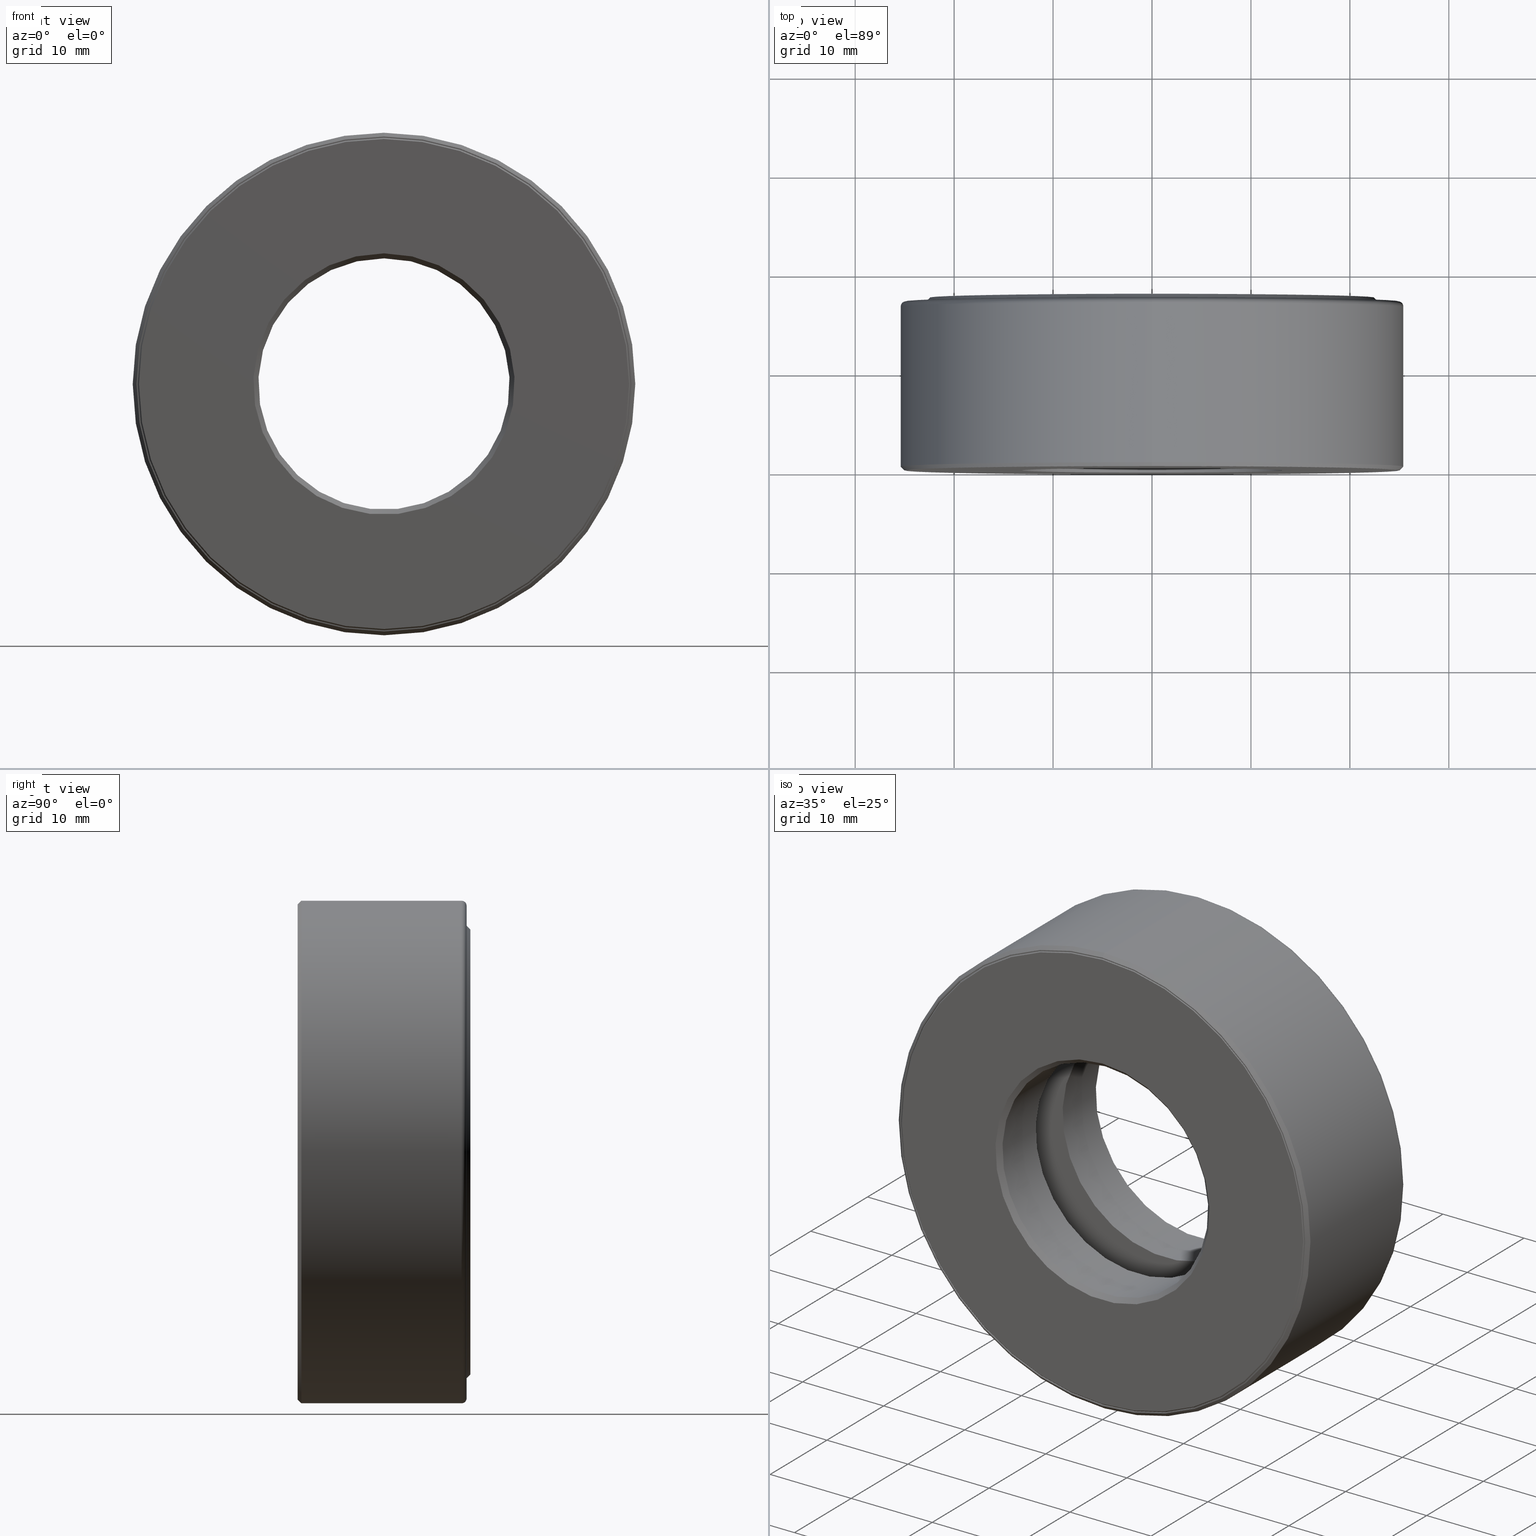
[diagram: canonical four-view strip — front | top / right | iso, engineering-drawing reading convention]
A machine part, canonical four-view strip (front | top / right | iso — engineering-drawing reading convention). The complete STEP part file that produces these views, byte-faithful:
ISO-10303-21;
HEADER;
FILE_DESCRIPTION (( 'STEP AP203' ),
    '1' );
FILE_NAME ('T-100-8.step',
    '2016-06-29T18:27:15',
    ( '' ),
    ( '' ),
    'SwSTEP 2.0',
    'SolidWorks 2016',
    '' );
FILE_SCHEMA (( 'CONFIG_CONTROL_DESIGN' ));
ENDSEC;

DATA;
#1 = CARTESIAN_POINT ( 'NONE',  ( 0.0000000000000000000, 0.3437499999999998300, 0.0000000000000000000 ) ) ;
#2 = FACE_BOUND ( 'NONE', #255, .T. ) ;
#3 = PERSON_AND_ORGANIZATION ( #600, #87 ) ;
#4 = FACE_BOUND ( 'NONE', #498, .T. ) ;
#5 = PERSON_AND_ORGANIZATION_ROLE ( 'design_owner' ) ;
#6 = EDGE_LOOP ( 'NONE', ( #476 ) ) ;
#7 = AXIS2_PLACEMENT_3D ( 'NONE', #485, #588, #363 ) ;
#8 = DIRECTION ( 'NONE',  ( -0.0000000000000000000, 1.000000000000000000, -0.0000000000000000000 ) ) ;
#9 = EDGE_LOOP ( 'NONE', ( #417 ) ) ;
#10 = AXIS2_PLACEMENT_3D ( 'NONE', #398, #477, #528 ) ;
#11 = CARTESIAN_POINT ( 'NONE',  ( 0.0000000000000000000, 0.01499999999999997700, 0.0000000000000000000 ) ) ;
#12 = FACE_OUTER_BOUND ( 'NONE', #505, .T. ) ;
#13 = VERTEX_POINT ( 'NONE', #530 ) ;
#14 = EDGE_LOOP ( 'NONE', ( #543 ) ) ;
#15 = DIRECTION ( 'NONE',  ( 0.0000000000000000000, 0.0000000000000000000, 1.000000000000000000 ) ) ;
#16 = FACE_BOUND ( 'NONE', #353, .T. ) ;
#17 = PLANE ( 'NONE',  #570 ) ;
#18 = EDGE_CURVE ( 'NONE', #202, #202, #578, .T. ) ;
#19 = DIRECTION ( 'NONE',  ( -0.0000000000000000000, 1.000000000000000000, -0.0000000000000000000 ) ) ;
#20 = EDGE_LOOP ( 'NONE', ( #481 ) ) ;
#21 = EDGE_LOOP ( 'NONE', ( #506 ) ) ;
#22 = EDGE_CURVE ( 'NONE', #65, #65, #296, .T. ) ;
#23 = CARTESIAN_POINT ( 'NONE',  ( 0.0000000000000000000, 0.6875000000000000000, 0.0000000000000000000 ) ) ;
#24 = DIRECTION ( 'NONE',  ( 0.0000000000000000000, 0.0000000000000000000, 1.000000000000000000 ) ) ;
#25 = CARTESIAN_POINT ( 'NONE',  ( 0.0000000000000000000, 0.2499999999999999700, 0.0000000000000000000 ) ) ;
#26 = FACE_OUTER_BOUND ( 'NONE', #378, .T. ) ;
#27 = COORDINATED_UNIVERSAL_TIME_OFFSET ( 5, 0, .BEHIND. ) ;
#28 = VERTEX_POINT ( 'NONE', #544 ) ;
#29 = DIRECTION ( 'NONE',  ( 0.0000000000000000000, -0.0000000000000000000, -1.000000000000000000 ) ) ;
#30 = DIRECTION ( 'NONE',  ( 6.982962677686269100E-015, -0.0000000000000000000, 1.000000000000000000 ) ) ;
#31 = EDGE_CURVE ( 'NONE', #80, #80, #523, .T. ) ;
#32 = EDGE_LOOP ( 'NONE', ( #370 ) ) ;
#33 = CARTESIAN_POINT ( 'NONE',  ( 0.0000000000000000000, -6.296055922898107200E-017, 0.9749999999999999800 ) ) ;
#34 = CARTESIAN_POINT ( 'NONE',  ( 0.0000000000000000000, 0.005000000000000000100, 0.9799999999999999800 ) ) ;
#35 = PRODUCT_DEFINITION_SHAPE ( 'NONE', 'NONE',  #471 ) ;
#36 = FACE_OUTER_BOUND ( 'NONE', #542, .T. ) ;
#37 = AXIS2_PLACEMENT_3D ( 'NONE', #47, #93, #424 ) ;
#38 = EDGE_LOOP ( 'NONE', ( #575 ) ) ;
#39 = CARTESIAN_POINT ( 'NONE',  ( 0.0000000000000000000, 0.2499999999999999700, 0.6897499999999997500 ) ) ;
#40 = ADVANCED_FACE ( 'NONE', ( #41, #453 ), #382, .T. ) ;
#41 = FACE_BOUND ( 'NONE', #203, .T. ) ;
#42 = FACE_BOUND ( 'NONE', #148, .T. ) ;
#43 = APPLICATION_PROTOCOL_DEFINITION ( 'international standard', 'config_control_design', 1994, #336 ) ;
#44 = EDGE_LOOP ( 'NONE', ( #118 ) ) ;
#45 = CIRCLE ( 'NONE', #451, 0.9999999999999998900 ) ;
#46 = PRODUCT_RELATED_PRODUCT_CATEGORY ( 'detail', '', ( #412 ) ) ;
#47 = CARTESIAN_POINT ( 'NONE',  ( 0.0000000000000000000, 0.6724999999999998800, 0.0000000000000000000 ) ) ;
#48 = ORIENTED_EDGE ( 'NONE', *, *, #389, .T. ) ;
#49 = AXIS2_PLACEMENT_3D ( 'NONE', #1, #180, #331 ) ;
#50 = FACE_BOUND ( 'NONE', #300, .T. ) ;
#51 = VERTEX_POINT ( 'NONE', #305 ) ;
#52 =( GEOMETRIC_REPRESENTATION_CONTEXT ( 3 ) GLOBAL_UNCERTAINTY_ASSIGNED_CONTEXT ( ( #108 ) ) GLOBAL_UNIT_ASSIGNED_CONTEXT ( ( #416, #320, #179 ) ) REPRESENTATION_CONTEXT ( 'NONE', 'WORKASPACE' ) );
#53 = DIRECTION ( 'NONE',  ( -0.0000000000000000000, 1.000000000000000000, -0.0000000000000000000 ) ) ;
#54 = ORIENTED_EDGE ( 'NONE', *, *, #358, .F. ) ;
#55 = DIRECTION ( 'NONE',  ( -0.0000000000000000000, 1.000000000000000000, 0.0000000000000000000 ) ) ;
#56 = EDGE_CURVE ( 'NONE', #488, #488, #316, .T. ) ;
#57 = AXIS2_PLACEMENT_3D ( 'NONE', #214, #404, #123 ) ;
#58 = TOROIDAL_SURFACE ( 'NONE', #576, 0.9799999999999999800, 0.02000000000000005900 ) ;
#59 = CARTESIAN_POINT ( 'NONE',  ( 0.0000000000000000000, 0.0000000000000000000, 0.0000000000000000000 ) ) ;
#60 = AXIS2_PLACEMENT_3D ( 'NONE', #514, #197, #295 ) ;
#61 = EDGE_LOOP ( 'NONE', ( #161 ) ) ;
#62 = FACE_OUTER_BOUND ( 'NONE', #490, .T. ) ;
#63 = PERSON_AND_ORGANIZATION ( #600, #87 ) ;
#64 = AXIS2_PLACEMENT_3D ( 'NONE', #400, #109, #355 ) ;
#65 = VERTEX_POINT ( 'NONE', #360 ) ;
#66 = EDGE_CURVE ( 'NONE', #429, #429, #516, .T. ) ;
#67 = PLANE ( 'NONE',  #371 ) ;
#68 = DIRECTION ( 'NONE',  ( -0.0000000000000000000, 1.000000000000000000, -0.0000000000000000000 ) ) ;
#69 = AXIS2_PLACEMENT_3D ( 'NONE', #59, #480, #256 ) ;
#70 = CARTESIAN_POINT ( 'NONE',  ( 0.0000000000000000000, 0.02000000000000033300, 0.0000000000000000000 ) ) ;
#71 = DIRECTION ( 'NONE',  ( 0.0000000000000000000, 0.0000000000000000000, 1.000000000000000000 ) ) ;
#72 = CARTESIAN_POINT ( 'NONE',  ( 0.0000000000000000000, -6.616194359655631800E-017, 0.9849999999999999900 ) ) ;
#73 = CIRCLE ( 'NONE', #473, 0.9799999999999999800 ) ;
#74 = VERTEX_POINT ( 'NONE', #539 ) ;
#75 = CC_DESIGN_SECURITY_CLASSIFICATION ( #280, ( #354 ) ) ;
#76 = CARTESIAN_POINT ( 'NONE',  ( 1.574681814529796800E-016, 0.4374999999999998900, 0.0000000000000000000 ) ) ;
#77 = ORIENTED_EDGE ( 'NONE', *, *, #85, .T. ) ;
#78 = APPROVAL_STATUS ( 'not_yet_approved' ) ;
#79 = FACE_OUTER_BOUND ( 'NONE', #6, .T. ) ;
#80 = VERTEX_POINT ( 'NONE', #583 ) ;
#81 = AXIS2_PLACEMENT_3D ( 'NONE', #462, #556, #141 ) ;
#82 = APPROVAL_ROLE ( '' ) ;
#83 = ADVANCED_FACE ( 'NONE', ( ), #144, .T. ) ;
#84 = CIRCLE ( 'NONE', #455, 0.5000000000000000000 ) ;
#85 = EDGE_CURVE ( 'NONE', #13, #13, #267, .T. ) ;
#86 = APPROVAL_DATE_TIME ( #428, #268 ) ;
#87 = ORGANIZATION ( 'UNSPECIFIED', 'UNSPECIFIED', '' ) ;
#88 = DIRECTION ( 'NONE',  ( 0.0000000000000000000, 0.0000000000000000000, 1.000000000000000000 ) ) ;
#89 = MANIFOLD_SOLID_BREP ( 'Revolve3', #519 ) ;
#90 = DIRECTION ( 'NONE',  ( -0.0000000000000000000, 1.000000000000000000, -0.0000000000000000000 ) ) ;
#91 = ORIENTED_EDGE ( 'NONE', *, *, #339, .T. ) ;
#92 = ADVANCED_FACE ( 'NONE', ( #540, #373 ), #478, .F. ) ;
#93 = DIRECTION ( 'NONE',  ( -0.0000000000000000000, 1.000000000000000000, -0.0000000000000000000 ) ) ;
#94 = AXIS2_PLACEMENT_3D ( 'NONE', #420, #422, #329 ) ;
#95 = CARTESIAN_POINT ( 'NONE',  ( 0.0000000000000000000, 0.4374999999999998900, 0.0000000000000000000 ) ) ;
#96 = CIRCLE ( 'NONE', #324, 0.9799999999999999800 ) ;
#97 = LOCAL_TIME ( 14, 27, 15.00000000000000000, #602 ) ;
#98 = VERTEX_POINT ( 'NONE', #443 ) ;
#99 = PERSON_AND_ORGANIZATION_ROLE ( 'classification_officer' ) ;
#100 = CC_DESIGN_PERSON_AND_ORGANIZATION_ASSIGNMENT ( #572, #5, ( #412 ) ) ;
#101 = DIRECTION ( 'NONE',  ( -0.0000000000000000000, 1.000000000000000000, -0.0000000000000000000 ) ) ;
#102 = ORIENTED_EDGE ( 'NONE', *, *, #183, .T. ) ;
#103 = DIRECTION ( 'NONE',  ( 0.0000000000000000000, 0.0000000000000000000, 1.000000000000000000 ) ) ;
#104 = AXIS2_PLACEMENT_3D ( 'NONE', #585, #352, #537 ) ;
#105 = CARTESIAN_POINT ( 'NONE',  ( 0.0000000000000000000, 0.6524999999999997500, 0.0000000000000000000 ) ) ;
#106 = CYLINDRICAL_SURFACE ( 'NONE', #442, 0.9200000000000000400 ) ;
#107 = VERTEX_POINT ( 'NONE', #209 ) ;
#108 = UNCERTAINTY_MEASURE_WITH_UNIT (LENGTH_MEASURE( 1.000000000000000100E-005 ), #416, 'distance_accuracy_value', 'NONE');
#109 = DIRECTION ( 'NONE',  ( 1.000000000000000000, 0.0000000000000000000, -1.047444401652940000E-014 ) ) ;
#110 = ORIENTED_EDGE ( 'NONE', *, *, #261, .F. ) ;
#111 = ORIENTED_EDGE ( 'NONE', *, *, #167, .T. ) ;
#112 = DIRECTION ( 'NONE',  ( -0.0000000000000000000, 1.000000000000000000, -0.0000000000000000000 ) ) ;
#113 = AXIS2_PLACEMENT_3D ( 'NONE', #311, #215, #211 ) ;
#114 = CARTESIAN_POINT ( 'NONE',  ( 0.0000000000000000000, 0.6524999999999997500, 1.000000000000000000 ) ) ;
#115 = AXIS2_PLACEMENT_3D ( 'NONE', #391, #159, #24 ) ;
#116 = CLOSED_SHELL ( 'NONE', ( #40, #92, #545, #182, #147, #598, #226, #415 ) ) ;
#117 = PERSON_AND_ORGANIZATION ( #600, #87 ) ;
#118 = ORIENTED_EDGE ( 'NONE', *, *, #339, .F. ) ;
#119 = ORIENTED_EDGE ( 'NONE', *, *, #85, .F. ) ;
#120 = CARTESIAN_POINT ( 'NONE',  ( 0.0000000000000000000, -6.398792618417301800E-017, 0.0000000000000000000 ) ) ;
#121 = CC_DESIGN_APPROVAL ( #566, ( #471 ) ) ;
#122 = FACE_OUTER_BOUND ( 'NONE', #383, .T. ) ;
#123 = DIRECTION ( 'NONE',  ( 0.0000000000000000000, -0.0000000000000000000, -1.000000000000000000 ) ) ;
#124 = PLANE ( 'NONE',  #113 ) ;
#125 = ORIENTED_EDGE ( 'NONE', *, *, #156, .T. ) ;
#126 = ORIENTED_EDGE ( 'NONE', *, *, #569, .T. ) ;
#127 = EDGE_LOOP ( 'NONE', ( #606 ) ) ;
#128 = EDGE_CURVE ( 'NONE', #98, #98, #387, .T. ) ;
#129 = SPHERICAL_SURFACE ( 'NONE', #464, 0.1562500000000000000 ) ;
#130 = ORIENTED_EDGE ( 'NONE', *, *, #261, .T. ) ;
#131 = EDGE_LOOP ( 'NONE', ( #91 ) ) ;
#132 = CC_DESIGN_PERSON_AND_ORGANIZATION_ASSIGNMENT ( #63, #134, ( #471 ) ) ;
#133 = ADVANCED_FACE ( 'NONE', ( #241, #16 ), #365, .T. ) ;
#134 = PERSON_AND_ORGANIZATION_ROLE ( 'creator' ) ;
#135 = CIRCLE ( 'NONE', #146, 0.9200000000000000400 ) ;
#136 = SHAPE_DEFINITION_REPRESENTATION ( #35, #374 ) ;
#137 = CIRCLE ( 'NONE', #104, 0.9397499999999998600 ) ;
#138 = DIRECTION ( 'NONE',  ( 0.0000000000000000000, -0.0000000000000000000, -1.000000000000000000 ) ) ;
#139 = MANIFOLD_SOLID_BREP ( 'Revolve2[2]', #116 ) ;
#140 = EDGE_LOOP ( 'NONE', ( #269 ) ) ;
#141 = DIRECTION ( 'NONE',  ( 0.0000000000000000000, 0.0000000000000000000, 1.000000000000000000 ) ) ;
#142 = DIMENSIONAL_EXPONENTS ( 1.000000000000000000, 0.0000000000000000000, 0.0000000000000000000, 0.0000000000000000000, 0.0000000000000000000, 0.0000000000000000000, 0.0000000000000000000 ) ;
#143 = CARTESIAN_POINT ( 'NONE',  ( 0.0000000000000000000, 0.4374999999999998900, 0.0000000000000000000 ) ) ;
#144 = SPHERICAL_SURFACE ( 'NONE', #285, 0.1562500000000000000 ) ;
#145 = CARTESIAN_POINT ( 'NONE',  ( -0.8147499999999998600, 0.3437499999999998300, 0.0000000000000000000 ) ) ;
#146 = AXIS2_PLACEMENT_3D ( 'NONE', #437, #297, #299 ) ;
#147 = ADVANCED_FACE ( 'NONE', ( #509, #592 ), #380, .F. ) ;
#148 = EDGE_LOOP ( 'NONE', ( #351 ) ) ;
#149 = CARTESIAN_POINT ( 'NONE',  ( 0.0000000000000000000, 0.0000000000000000000, 0.0000000000000000000 ) ) ;
#150 = ORIENTED_EDGE ( 'NONE', *, *, #246, .F. ) ;
#151 = FACE_OUTER_BOUND ( 'NONE', #153, .T. ) ;
#152 = DIRECTION ( 'NONE',  ( -0.0000000000000000000, 1.000000000000000000, -0.0000000000000000000 ) ) ;
#153 = EDGE_LOOP ( 'NONE', ( #102 ) ) ;
#154 = EDGE_LOOP ( 'NONE', ( #450 ) ) ;
#155 = CARTESIAN_POINT ( 'NONE',  ( 0.0000000000000000000, 0.0000000000000000000, 0.0000000000000000000 ) ) ;
#156 = EDGE_CURVE ( 'NONE', #176, #176, #260, .T. ) ;
#157 = AXIS2_PLACEMENT_3D ( 'NONE', #120, #263, #259 ) ;
#158 = FACE_BOUND ( 'NONE', #131, .T. ) ;
#159 = DIRECTION ( 'NONE',  ( -0.0000000000000000000, 1.000000000000000000, -0.0000000000000000000 ) ) ;
#160 = AXIS2_PLACEMENT_3D ( 'NONE', #143, #90, #551 ) ;
#161 = ORIENTED_EDGE ( 'NONE', *, *, #22, .T. ) ;
#162 = CARTESIAN_POINT ( 'NONE',  ( 0.0000000000000000000, 0.01499999999999997700, 0.9999999999999998900 ) ) ;
#163 = DIRECTION ( 'NONE',  ( 0.0000000000000000000, 0.0000000000000000000, 1.000000000000000000 ) ) ;
#164 = CYLINDRICAL_SURFACE ( 'NONE', #115, 0.9799999999999999800 ) ;
#165 = DATE_AND_TIME ( #207, #501 ) ;
#166 = VERTEX_POINT ( 'NONE', #580 ) ;
#167 = EDGE_CURVE ( 'NONE', #564, #564, #185, .T. ) ;
#168 = PLANE ( 'NONE',  #557 ) ;
#169 = CC_DESIGN_PERSON_AND_ORGANIZATION_ASSIGNMENT ( #571, #99, ( #280 ) ) ;
#170 = FACE_OUTER_BOUND ( 'NONE', #390, .T. ) ;
#171 = ORIENTED_EDGE ( 'NONE', *, *, #56, .F. ) ;
#172 = CARTESIAN_POINT ( 'NONE',  ( 0.0000000000000000000, 0.4375000000000000000, 0.6897499999999997500 ) ) ;
#173 = FACE_OUTER_BOUND ( 'NONE', #20, .T. ) ;
#174 = AXIS2_PLACEMENT_3D ( 'NONE', #105, #55, #15 ) ;
#175 = CALENDAR_DATE ( 2016, 29, 6 ) ;
#176 = VERTEX_POINT ( 'NONE', #72 ) ;
#177 =( LENGTH_UNIT ( ) NAMED_UNIT ( * ) SI_UNIT ( $, .METRE. ) );
#178 = ADVANCED_FACE ( 'NONE', ( #348, #158 ), #342, .F. ) ;
#179 =( NAMED_UNIT ( * ) SI_UNIT ( $, .STERADIAN. ) SOLID_ANGLE_UNIT ( ) );
#180 = DIRECTION ( 'NONE',  ( -0.0000000000000000000, 1.000000000000000000, -0.0000000000000000000 ) ) ;
#181 = CC_DESIGN_APPROVAL ( #233, ( #354 ) ) ;
#182 = ADVANCED_FACE ( 'NONE', ( #170, #26 ), #290, .F. ) ;
#183 = EDGE_CURVE ( 'NONE', #74, #74, #493, .T. ) ;
#184 = DIRECTION ( 'NONE',  ( -0.0000000000000000000, 1.000000000000000000, -0.0000000000000000000 ) ) ;
#185 = CIRCLE ( 'NONE', #228, 0.9729999999999998600 ) ;
#186 = ADVANCED_FACE ( 'NONE', ( #2, #12 ), #565, .F. ) ;
#187 = ORIENTED_EDGE ( 'NONE', *, *, #403, .F. ) ;
#188 = CLOSED_SHELL ( 'NONE', ( #376, #456, #287, #178, #322, #508, #278, #229, #133, #550, #190, #333, #372, #504, #274, #186 ) ) ;
#189 = DIRECTION ( 'NONE',  ( 0.0000000000000000000, 0.0000000000000000000, 1.000000000000000000 ) ) ;
#190 = ADVANCED_FACE ( 'NONE', ( #394, #500 ), #421, .F. ) ;
#191 = CYLINDRICAL_SURFACE ( 'NONE', #423, 1.000000000000000000 ) ;
#192 = DATE_AND_TIME ( #175, #447 ) ;
#193 = CIRCLE ( 'NONE', #524, 0.6897499999999997500 ) ;
#194 = CARTESIAN_POINT ( 'NONE',  ( 0.0000000000000000000, 0.6724999999999998800, 0.0000000000000000000 ) ) ;
#195 = DIRECTION ( 'NONE',  ( 0.0000000000000000000, 0.0000000000000000000, 1.000000000000000000 ) ) ;
#196 = ORIENTED_EDGE ( 'NONE', *, *, #389, .F. ) ;
#197 = DIRECTION ( 'NONE',  ( -0.0000000000000000000, 1.000000000000000000, -0.0000000000000000000 ) ) ;
#198 = AXIS2_PLACEMENT_3D ( 'NONE', #559, #377, #88 ) ;
#199 = DIRECTION ( 'NONE',  ( 0.0000000000000000000, -1.000000000000000000, 0.0000000000000000000 ) ) ;
#200 = CIRCLE ( 'NONE', #419, 0.5000000000000001100 ) ;
#201 = CALENDAR_DATE ( 2016, 29, 6 ) ;
#202 = VERTEX_POINT ( 'NONE', #309 ) ;
#203 = EDGE_LOOP ( 'NONE', ( #362 ) ) ;
#204 = CARTESIAN_POINT ( 'NONE',  ( 0.0000000000000000000, -6.296055922898107200E-017, 0.0000000000000000000 ) ) ;
#205 = CARTESIAN_POINT ( 'NONE',  ( 0.0000000000000000000, 0.3437499999999998300, 0.0000000000000000000 ) ) ;
#206 = FACE_OUTER_BOUND ( 'NONE', #496, .T. ) ;
#207 = CALENDAR_DATE ( 2016, 29, 6 ) ;
#208 = CIRCLE ( 'NONE', #157, 0.9799999999999997600 ) ;
#209 = CARTESIAN_POINT ( 'NONE',  ( 0.0000000000000000000, 0.2499999999999998900, 0.9397499999999998600 ) ) ;
#210 = DIRECTION ( 'NONE',  ( -0.0000000000000000000, 1.000000000000000000, -0.0000000000000000000 ) ) ;
#211 = DIRECTION ( 'NONE',  ( 0.0000000000000000000, 0.0000000000000000000, 1.000000000000000000 ) ) ;
#212 = DIRECTION ( 'NONE',  ( 0.0000000000000000000, -1.000000000000000000, 0.0000000000000000000 ) ) ;
#213 = DIRECTION ( 'NONE',  ( 0.0000000000000000000, -1.000000000000000000, 0.0000000000000000000 ) ) ;
#214 = CARTESIAN_POINT ( 'NONE',  ( 0.0000000000000000000, 0.6724999999999998800, 0.0000000000000000000 ) ) ;
#215 = DIRECTION ( 'NONE',  ( -0.0000000000000000000, 1.000000000000000000, 0.0000000000000000000 ) ) ;
#216 = CONICAL_SURFACE ( 'NONE', #319, 0.9749999999999999800, 0.7853981633974367300 ) ;
#217 = APPROVAL_DATE_TIME ( #230, #233 ) ;
#218 = EDGE_LOOP ( 'NONE', ( #486 ) ) ;
#219 = EDGE_LOOP ( 'NONE', ( #470 ) ) ;
#220 = FACE_OUTER_BOUND ( 'NONE', #237, .T. ) ;
#221 = CC_DESIGN_PERSON_AND_ORGANIZATION_ASSIGNMENT ( #344, #457, ( #354 ) ) ;
#222 = EDGE_LOOP ( 'NONE', ( #111 ) ) ;
#223 = DATE_TIME_ROLE ( 'creation_date' ) ;
#224 = CARTESIAN_POINT ( 'NONE',  ( 0.0000000000000000000, 0.02000000000000033300, 0.5000000000000000000 ) ) ;
#225 = DIRECTION ( 'NONE',  ( -0.0000000000000000000, 1.000000000000000000, -0.0000000000000000000 ) ) ;
#226 = ADVANCED_FACE ( 'NONE', ( #306, #410 ), #283, .T. ) ;
#227 = FACE_OUTER_BOUND ( 'NONE', #218, .T. ) ;
#228 = AXIS2_PLACEMENT_3D ( 'NONE', #95, #53, #426 ) ;
#229 = ADVANCED_FACE ( 'NONE', ( #235, #62 ), #191, .T. ) ;
#230 = DATE_AND_TIME ( #459, #97 ) ;
#231 = ADVANCED_FACE ( 'NONE', ( ), #250, .T. ) ;
#232 = CLOSED_SHELL ( 'NONE', ( #231 ) ) ;
#233 = APPROVAL ( #418, 'UNSPECIFIED' ) ;
#234 = DIRECTION ( 'NONE',  ( 0.0000000000000000000, 0.0000000000000000000, 1.000000000000000000 ) ) ;
#235 = FACE_OUTER_BOUND ( 'NONE', #32, .T. ) ;
#236 = PERSON_AND_ORGANIZATION ( #600, #87 ) ;
#237 = EDGE_LOOP ( 'NONE', ( #527 ) ) ;
#238 = EDGE_LOOP ( 'NONE', ( #301 ) ) ;
#239 = AXIS2_PLACEMENT_3D ( 'NONE', #334, #225, #552 ) ;
#240 = DIRECTION ( 'NONE',  ( 0.0000000000000000000, -1.000000000000000000, 0.0000000000000000000 ) ) ;
#241 = FACE_OUTER_BOUND ( 'NONE', #595, .T. ) ;
#242 = VERTEX_POINT ( 'NONE', #276 ) ;
#243 = CC_DESIGN_PERSON_AND_ORGANIZATION_ASSIGNMENT ( #291, #368, ( #354 ) ) ;
#244 = DIRECTION ( 'NONE',  ( 0.0000000000000000000, 0.0000000000000000000, -1.000000000000000000 ) ) ;
#245 = DIRECTION ( 'NONE',  ( -0.0000000000000000000, 1.000000000000000000, -0.0000000000000000000 ) ) ;
#246 = EDGE_CURVE ( 'NONE', #555, #555, #96, .T. ) ;
#247 = CLOSED_SHELL ( 'NONE', ( #321 ) ) ;
#248 = ORIENTED_EDGE ( 'NONE', *, *, #18, .T. ) ;
#249 = CARTESIAN_POINT ( 'NONE',  ( -9.956752322577165600E-033, 2.667820306312757000E-018, 0.0000000000000000000 ) ) ;
#250 = SPHERICAL_SURFACE ( 'NONE', #264, 0.1562500000000000000 ) ;
#251 = CIRCLE ( 'NONE', #495, 0.6897499999999997500 ) ;
#252 = AXIS2_PLACEMENT_3D ( 'NONE', #467, #101, #573 ) ;
#253 = CARTESIAN_POINT ( 'NONE',  ( 0.0000000000000000000, 0.0000000000000000000, 0.0000000000000000000 ) ) ;
#254 = ORIENTED_EDGE ( 'NONE', *, *, #515, .F. ) ;
#255 = EDGE_LOOP ( 'NONE', ( #119 ) ) ;
#256 = DIRECTION ( 'NONE',  ( 0.0000000000000000000, 0.0000000000000000000, 1.000000000000000000 ) ) ;
#257 = CARTESIAN_POINT ( 'NONE',  ( 0.0000000000000000000, 0.6524999999999997500, 0.9200000000000000400 ) ) ;
#258 = DIRECTION ( 'NONE',  ( -0.0000000000000000000, 1.000000000000000000, -0.0000000000000000000 ) ) ;
#259 = DIRECTION ( 'NONE',  ( 0.0000000000000000000, 0.0000000000000000000, 1.000000000000000000 ) ) ;
#260 = CIRCLE ( 'NONE', #252, 0.9849999999999999900 ) ;
#261 = EDGE_CURVE ( 'NONE', #534, #534, #45, .T. ) ;
#262 = FACE_BOUND ( 'NONE', #154, .T. ) ;
#263 = DIRECTION ( 'NONE',  ( -0.0000000000000000000, 1.000000000000000000, -0.0000000000000000000 ) ) ;
#264 = AXIS2_PLACEMENT_3D ( 'NONE', #430, #346, #518 ) ;
#265 = DIRECTION ( 'NONE',  ( 0.0000000000000000000, -0.0000000000000000000, -1.000000000000000000 ) ) ;
#266 = ORIENTED_EDGE ( 'NONE', *, *, #31, .F. ) ;
#267 = CIRCLE ( 'NONE', #497, 0.5000000000000001100 ) ;
#268 = APPROVAL ( #78, 'UNSPECIFIED' ) ;
#269 = ORIENTED_EDGE ( 'NONE', *, *, #569, .F. ) ;
#270 = APPROVAL_ROLE ( '' ) ;
#271 = EDGE_LOOP ( 'NONE', ( #427 ) ) ;
#272 = APPLICATION_PROTOCOL_DEFINITION ( 'international standard', 'config_control_design', 1994, #599 ) ;
#273 = AXIS2_PLACEMENT_3D ( 'NONE', #76, #213, #265 ) ;
#274 = ADVANCED_FACE ( 'NONE', ( #463, #36 ), #335, .F. ) ;
#275 = FACE_OUTER_BOUND ( 'NONE', #44, .T. ) ;
#276 = CARTESIAN_POINT ( 'NONE',  ( 0.0000000000000000000, 0.6875000000000000000, 0.8849999999999996800 ) ) ;
#277 = FACE_BOUND ( 'NONE', #9, .T. ) ;
#278 = ADVANCED_FACE ( 'NONE', ( #206, #79 ), #58, .T. ) ;
#279 = CARTESIAN_POINT ( 'NONE',  ( 0.0000000000000000000, 0.4375000000000000000, 0.9397499999999998600 ) ) ;
#280 = SECURITY_CLASSIFICATION ( '', '', #596 ) ;
#281 = ORIENTED_EDGE ( 'NONE', *, *, #303, .F. ) ;
#282 = AXIS2_PLACEMENT_3D ( 'NONE', #205, #577, #522 ) ;
#283 = CONICAL_SURFACE ( 'NONE', #392, 0.8849999999999996800, 0.7853981633974482800 ) ;
#284 = DIRECTION ( 'NONE',  ( -0.0000000000000000000, 1.000000000000000000, -0.0000000000000000000 ) ) ;
#285 = AXIS2_PLACEMENT_3D ( 'NONE', #145, #507, #323 ) ;
#286 = CLOSED_SHELL ( 'NONE', ( #558 ) ) ;
#287 = ADVANCED_FACE ( 'NONE', ( #562, #173 ), #164, .F. ) ;
#288 = CARTESIAN_POINT ( 'NONE',  ( 0.0000000000000000000, 0.0000000000000000000, 0.0000000000000000000 ) ) ;
#289 = AXIS2_PLACEMENT_3D ( 'NONE', #318, #499, #549 ) ;
#290 = CYLINDRICAL_SURFACE ( 'NONE', #294, 0.5000000000000001100 ) ;
#291 = PERSON_AND_ORGANIZATION ( #600, #87 ) ;
#292 = VERTEX_POINT ( 'NONE', #172 ) ;
#293 = CARTESIAN_POINT ( 'NONE',  ( 0.0000000000000000000, 0.005000000000000000100, 0.0000000000000000000 ) ) ;
#294 = AXIS2_PLACEMENT_3D ( 'NONE', #288, #388, #189 ) ;
#295 = DIRECTION ( 'NONE',  ( 0.0000000000000000000, 0.0000000000000000000, 1.000000000000000000 ) ) ;
#296 = CIRCLE ( 'NONE', #239, 0.9729999999999995300 ) ;
#297 = DIRECTION ( 'NONE',  ( -0.0000000000000000000, 1.000000000000000000, -0.0000000000000000000 ) ) ;
#298 = DESIGN_CONTEXT ( 'detailed design', #336, 'design' ) ;
#299 = DIRECTION ( 'NONE',  ( 0.0000000000000000000, 0.0000000000000000000, 1.000000000000000000 ) ) ;
#300 = EDGE_LOOP ( 'NONE', ( #432 ) ) ;
#301 = ORIENTED_EDGE ( 'NONE', *, *, #167, .F. ) ;
#302 = CARTESIAN_POINT ( 'NONE',  ( 0.0000000000000000000, 0.6674999999999998700, 0.0000000000000000000 ) ) ;
#303 = EDGE_CURVE ( 'NONE', #107, #107, #546, .T. ) ;
#304 = DIRECTION ( 'NONE',  ( 0.0000000000000000000, 0.0000000000000000000, 1.000000000000000000 ) ) ;
#305 = CARTESIAN_POINT ( 'NONE',  ( 0.0000000000000000000, 0.6674999999999998700, 0.5000000000000001100 ) ) ;
#306 = FACE_OUTER_BOUND ( 'NONE', #61, .T. ) ;
#307 = DIRECTION ( 'NONE',  ( 0.0000000000000000000, -1.000000000000000000, 0.0000000000000000000 ) ) ;
#308 = DIRECTION ( 'NONE',  ( 0.0000000000000000000, 0.0000000000000000000, 1.000000000000000000 ) ) ;
#309 = CARTESIAN_POINT ( 'NONE',  ( 0.0000000000000000000, 0.2499999999999999200, 0.9799999999999997600 ) ) ;
#310 = FACE_OUTER_BOUND ( 'NONE', #21, .T. ) ;
#311 = CARTESIAN_POINT ( 'NONE',  ( 0.0000000000000000000, 0.6875000000000000000, 0.0000000000000000000 ) ) ;
#312 = AXIS2_PLACEMENT_3D ( 'NONE', #356, #401, #439 ) ;
#313 = EDGE_LOOP ( 'NONE', ( #491 ) ) ;
#314 = AXIS2_PLACEMENT_3D ( 'NONE', #194, #8, #434 ) ;
#315 = APPROVAL_ROLE ( '' ) ;
#316 = CIRCLE ( 'NONE', #340, 0.9749999999999999800 ) ;
#317 = FACE_OUTER_BOUND ( 'NONE', #271, .T. ) ;
#318 = CARTESIAN_POINT ( 'NONE',  ( 0.0000000000000000000, 0.0000000000000000000, 0.0000000000000000000 ) ) ;
#319 = AXIS2_PLACEMENT_3D ( 'NONE', #204, #112, #525 ) ;
#320 =( NAMED_UNIT ( * ) PLANE_ANGLE_UNIT ( ) SI_UNIT ( $, .RADIAN. ) );
#321 = ADVANCED_FACE ( 'NONE', ( ), #402, .T. ) ;
#322 = ADVANCED_FACE ( 'NONE', ( #275, #151 ), #106, .F. ) ;
#323 = DIRECTION ( 'NONE',  ( 1.000000000000000000, 0.0000000000000000000, 0.0000000000000000000 ) ) ;
#324 = AXIS2_PLACEMENT_3D ( 'NONE', #293, #472, #195 ) ;
#325 = FACE_BOUND ( 'NONE', #361, .T. ) ;
#326 = LOCAL_TIME ( 14, 27, 15.00000000000000000, #554 ) ;
#327 = DIRECTION ( 'NONE',  ( 0.0000000000000000000, -1.000000000000000000, 0.0000000000000000000 ) ) ;
#328 = CONICAL_SURFACE ( 'NONE', #446, 0.5000000000000000000, 0.7853981633974431700 ) ;
#329 = DIRECTION ( 'NONE',  ( 0.0000000000000000000, 0.0000000000000000000, 1.000000000000000000 ) ) ;
#330 = ORIENTED_EDGE ( 'NONE', *, *, #128, .F. ) ;
#331 = DIRECTION ( 'NONE',  ( 0.0000000000000000000, 0.0000000000000000000, 1.000000000000000000 ) ) ;
#332 = MANIFOLD_SOLID_BREP ( 'BALLS[3]', #247 ) ;
#333 = ADVANCED_FACE ( 'NONE', ( #531, #50 ), #216, .T. ) ;
#334 = CARTESIAN_POINT ( 'NONE',  ( 0.0000000000000000000, 0.5995000000000001400, 0.0000000000000000000 ) ) ;
#335 = CYLINDRICAL_SURFACE ( 'NONE', #563, 0.5000000000000000000 ) ;
#336 = APPLICATION_CONTEXT ( 'configuration controlled 3d designs of mechanical parts and assemblies' ) ;
#337 = CALENDAR_DATE ( 2016, 29, 6 ) ;
#338 = VERTEX_POINT ( 'NONE', #521 ) ;
#339 = EDGE_CURVE ( 'NONE', #517, #517, #135, .T. ) ;
#340 = AXIS2_PLACEMENT_3D ( 'NONE', #460, #184, #379 ) ;
#341 = DIRECTION ( 'NONE',  ( -0.0000000000000000000, 1.000000000000000000, -0.0000000000000000000 ) ) ;
#342 = PLANE ( 'NONE',  #174 ) ;
#343 = FACE_OUTER_BOUND ( 'NONE', #140, .T. ) ;
#344 = PERSON_AND_ORGANIZATION ( #600, #87 ) ;
#345 = VERTEX_POINT ( 'NONE', #279 ) ;
#346 = DIRECTION ( 'NONE',  ( -1.000000000000000000, 0.0000000000000000000, 3.491481338843134500E-015 ) ) ;
#347 = ORIENTED_EDGE ( 'NONE', *, *, #18, .F. ) ;
#348 = FACE_OUTER_BOUND ( 'NONE', #468, .T. ) ;
#349 = DIRECTION ( 'NONE',  ( 0.0000000000000000000, 0.0000000000000000000, 1.000000000000000000 ) ) ;
#350 = VERTEX_POINT ( 'NONE', #39 ) ;
#351 = ORIENTED_EDGE ( 'NONE', *, *, #183, .F. ) ;
#352 = DIRECTION ( 'NONE',  ( -0.0000000000000000000, 1.000000000000000000, -0.0000000000000000000 ) ) ;
#353 = EDGE_LOOP ( 'NONE', ( #125 ) ) ;
#354 = PRODUCT_DEFINITION_FORMATION_WITH_SPECIFIED_SOURCE ( 'ANY', '', #412, .NOT_KNOWN. ) ;
#355 = DIRECTION ( 'NONE',  ( 1.047444401652940000E-014, 0.0000000000000000000, 1.000000000000000000 ) ) ;
#356 = CARTESIAN_POINT ( 'NONE',  ( 0.0000000000000000000, 0.6524999999999997500, 0.0000000000000000000 ) ) ;
#357 = FACE_OUTER_BOUND ( 'NONE', #38, .T. ) ;
#358 = EDGE_CURVE ( 'NONE', #166, #166, #73, .T. ) ;
#359 = MANIFOLD_SOLID_BREP ( 'BALLS[2]', #286 ) ;
#360 = CARTESIAN_POINT ( 'NONE',  ( 0.0000000000000000000, 0.5995000000000001400, 0.9729999999999995300 ) ) ;
#361 = EDGE_LOOP ( 'NONE', ( #281 ) ) ;
#362 = ORIENTED_EDGE ( 'NONE', *, *, #515, .T. ) ;
#363 = DIRECTION ( 'NONE',  ( 0.0000000000000000000, 0.0000000000000000000, 1.000000000000000000 ) ) ;
#364 = AXIS2_PLACEMENT_3D ( 'NONE', #149, #245, #103 ) ;
#365 = CONICAL_SURFACE ( 'NONE', #198, 0.9849999999999999900, 0.7853981633974415100 ) ;
#366 = VERTEX_POINT ( 'NONE', #114 ) ;
#367 = CC_DESIGN_DATE_AND_TIME_ASSIGNMENT ( #165, #223, ( #471 ) ) ;
#368 = PERSON_AND_ORGANIZATION_ROLE ( 'design_supplier' ) ;
#369 = ORIENTED_EDGE ( 'NONE', *, *, #399, .F. ) ;
#370 = ORIENTED_EDGE ( 'NONE', *, *, #548, .F. ) ;
#371 = AXIS2_PLACEMENT_3D ( 'NONE', #536, #307, #29 ) ;
#372 = ADVANCED_FACE ( 'NONE', ( #458, #601 ), #17, .F. ) ;
#373 = FACE_OUTER_BOUND ( 'NONE', #589, .T. ) ;
#374 = ADVANCED_BREP_SHAPE_REPRESENTATION ( 'T-100-8', ( #590, #139, #89, #541, #359, #332, #289 ), #52 ) ;
#375 = CC_DESIGN_DATE_AND_TIME_ASSIGNMENT ( #494, #503, ( #280 ) ) ;
#376 = ADVANCED_FACE ( 'NONE', ( #343, #357 ), #553, .F. ) ;
#377 = DIRECTION ( 'NONE',  ( -0.0000000000000000000, 1.000000000000000000, -0.0000000000000000000 ) ) ;
#378 = EDGE_LOOP ( 'NONE', ( #597 ) ) ;
#379 = DIRECTION ( 'NONE',  ( 0.0000000000000000000, 0.0000000000000000000, 1.000000000000000000 ) ) ;
#380 = CONICAL_SURFACE ( 'NONE', #60, 0.5000000000000001100, 0.7853981633974466100 ) ;
#381 = LOCAL_TIME ( 14, 27, 15.00000000000000000, #465 ) ;
#382 = PLANE ( 'NONE',  #510 ) ;
#383 = EDGE_LOOP ( 'NONE', ( #248 ) ) ;
#384 = EDGE_LOOP ( 'NONE', ( #452 ) ) ;
#385 = MECHANICAL_CONTEXT ( 'NONE', #599, 'mechanical' ) ;
#386 = DIRECTION ( 'NONE',  ( 0.0000000000000000000, -0.0000000000000000000, -1.000000000000000000 ) ) ;
#387 = CIRCLE ( 'NONE', #81, 0.5200000000000000200 ) ;
#388 = DIRECTION ( 'NONE',  ( -0.0000000000000000000, 1.000000000000000000, -0.0000000000000000000 ) ) ;
#389 = EDGE_CURVE ( 'NONE', #51, #51, #200, .T. ) ;
#390 = EDGE_LOOP ( 'NONE', ( #48 ) ) ;
#391 = CARTESIAN_POINT ( 'NONE',  ( 0.0000000000000000000, 0.0000000000000000000, 0.0000000000000000000 ) ) ;
#392 = AXIS2_PLACEMENT_3D ( 'NONE', #469, #199, #244 ) ;
#393 = CARTESIAN_POINT ( 'NONE',  ( 0.0000000000000000000, 0.6524999999999997500, 0.0000000000000000000 ) ) ;
#394 = FACE_OUTER_BOUND ( 'NONE', #384, .T. ) ;
#395 = DIRECTION ( 'NONE',  ( -0.0000000000000000000, 1.000000000000000000, -0.0000000000000000000 ) ) ;
#396 = ORIENTED_EDGE ( 'NONE', *, *, #66, .T. ) ;
#397 = EDGE_LOOP ( 'NONE', ( #512 ) ) ;
#398 = CARTESIAN_POINT ( 'NONE',  ( 0.0000000000000000000, 0.2499999999999998900, 0.0000000000000000000 ) ) ;
#399 = EDGE_CURVE ( 'NONE', #405, #405, #84, .T. ) ;
#400 = CARTESIAN_POINT ( 'NONE',  ( -8.534053262467326700E-015, 0.3437499999999998300, -0.8147499999999998600 ) ) ;
#401 = DIRECTION ( 'NONE',  ( -0.0000000000000000000, 1.000000000000000000, -0.0000000000000000000 ) ) ;
#402 = SPHERICAL_SURFACE ( 'NONE', #64, 0.1562500000000000000 ) ;
#403 = EDGE_CURVE ( 'NONE', #242, #242, #586, .T. ) ;
#404 = DIRECTION ( 'NONE',  ( 0.0000000000000000000, -1.000000000000000000, 0.0000000000000000000 ) ) ;
#405 = VERTEX_POINT ( 'NONE', #224 ) ;
#406 = PLANE ( 'NONE',  #273 ) ;
#407 = EDGE_LOOP ( 'NONE', ( #171 ) ) ;
#408 = DIRECTION ( 'NONE',  ( -1.000000000000000000, 0.0000000000000000000, 6.982962677686269100E-015 ) ) ;
#409 = CARTESIAN_POINT ( 'NONE',  ( 0.8147499999999998600, 0.3437499999999998300, -5.689368841644884400E-015 ) ) ;
#410 = FACE_BOUND ( 'NONE', #440, .T. ) ;
#411 = EDGE_LOOP ( 'NONE', ( #369 ) ) ;
#412 = PRODUCT ( 'T-100-8', 'T-100-8', '', ( #385 ) ) ;
#413 = COORDINATED_UNIVERSAL_TIME_OFFSET ( 5, 0, .BEHIND. ) ;
#414 = CIRCLE ( 'NONE', #312, 1.000000000000000000 ) ;
#415 = ADVANCED_FACE ( 'NONE', ( #474, #227 ), #448, .T. ) ;
#416 =( CONVERSION_BASED_UNIT ( 'INCH', #603 ) LENGTH_UNIT ( ) NAMED_UNIT ( #142 ) );
#417 = ORIENTED_EDGE ( 'NONE', *, *, #526, .T. ) ;
#418 = APPROVAL_STATUS ( 'not_yet_approved' ) ;
#419 = AXIS2_PLACEMENT_3D ( 'NONE', #302, #19, #349 ) ;
#420 = CARTESIAN_POINT ( 'NONE',  ( 0.0000000000000000000, 0.2499999999999999200, 0.0000000000000000000 ) ) ;
#421 = CYLINDRICAL_SURFACE ( 'NONE', #364, 0.9799999999999999800 ) ;
#422 = DIRECTION ( 'NONE',  ( -0.0000000000000000000, 1.000000000000000000, -0.0000000000000000000 ) ) ;
#423 = AXIS2_PLACEMENT_3D ( 'NONE', #155, #152, #475 ) ;
#424 = DIRECTION ( 'NONE',  ( 0.0000000000000000000, 0.0000000000000000000, 1.000000000000000000 ) ) ;
#425 = EDGE_LOOP ( 'NONE', ( #150 ) ) ;
#426 = DIRECTION ( 'NONE',  ( 0.0000000000000000000, 0.0000000000000000000, 1.000000000000000000 ) ) ;
#427 = ORIENTED_EDGE ( 'NONE', *, *, #156, .F. ) ;
#428 = DATE_AND_TIME ( #337, #381 ) ;
#429 = VERTEX_POINT ( 'NONE', #492 ) ;
#430 = CARTESIAN_POINT ( 'NONE',  ( 2.844684420822442200E-015, 0.3437499999999998300, 0.8147499999999998600 ) ) ;
#431 = AXIS2_PLACEMENT_3D ( 'NONE', #433, #240, #386 ) ;
#432 = ORIENTED_EDGE ( 'NONE', *, *, #56, .T. ) ;
#433 = CARTESIAN_POINT ( 'NONE',  ( -1.349727269596971600E-016, 0.2500000000000000000, 0.0000000000000000000 ) ) ;
#434 = DIRECTION ( 'NONE',  ( 0.0000000000000000000, 0.0000000000000000000, 1.000000000000000000 ) ) ;
#435 = DIRECTION ( 'NONE',  ( 0.0000000000000000000, 0.0000000000000000000, 1.000000000000000000 ) ) ;
#436 = EDGE_LOOP ( 'NONE', ( #396 ) ) ;
#437 = CARTESIAN_POINT ( 'NONE',  ( 0.0000000000000000000, 0.6524999999999997500, 0.0000000000000000000 ) ) ;
#438 = DIRECTION ( 'NONE',  ( 0.0000000000000000000, 0.0000000000000000000, 1.000000000000000000 ) ) ;
#439 = DIRECTION ( 'NONE',  ( 0.0000000000000000000, 0.0000000000000000000, 1.000000000000000000 ) ) ;
#440 = EDGE_LOOP ( 'NONE', ( #187 ) ) ;
#441 = FACE_OUTER_BOUND ( 'NONE', #127, .T. ) ;
#442 = AXIS2_PLACEMENT_3D ( 'NONE', #253, #479, #163 ) ;
#443 = CARTESIAN_POINT ( 'NONE',  ( 0.0000000000000000000, 0.6875000000000000000, 0.5200000000000000200 ) ) ;
#444 = DIRECTION ( 'NONE',  ( 0.0000000000000000000, 0.0000000000000000000, -1.000000000000000000 ) ) ;
#445 = CARTESIAN_POINT ( 'NONE',  ( -1.574715117770886900E-031, -6.507493489036469200E-017, 0.0000000000000000000 ) ) ;
#446 = AXIS2_PLACEMENT_3D ( 'NONE', #70, #212, #444 ) ;
#447 = LOCAL_TIME ( 14, 27, 15.00000000000000000, #413 ) ;
#448 = CYLINDRICAL_SURFACE ( 'NONE', #69, 0.9729999999999997500 ) ;
#449 = CARTESIAN_POINT ( 'NONE',  ( 0.0000000000000000000, 0.4374999999999998900, 0.9729999999999998600 ) ) ;
#450 = ORIENTED_EDGE ( 'NONE', *, *, #399, .T. ) ;
#451 = AXIS2_PLACEMENT_3D ( 'NONE', #11, #568, #438 ) ;
#452 = ORIENTED_EDGE ( 'NONE', *, *, #526, .F. ) ;
#453 = FACE_OUTER_BOUND ( 'NONE', #238, .T. ) ;
#454 = CIRCLE ( 'NONE', #7, 0.5200000000000000200 ) ;
#455 = AXIS2_PLACEMENT_3D ( 'NONE', #579, #395, #304 ) ;
#456 = ADVANCED_FACE ( 'NONE', ( #325, #122 ), #67, .F. ) ;
#457 = PERSON_AND_ORGANIZATION_ROLE ( 'creator' ) ;
#458 = FACE_OUTER_BOUND ( 'NONE', #407, .T. ) ;
#459 = CALENDAR_DATE ( 2016, 29, 6 ) ;
#460 = CARTESIAN_POINT ( 'NONE',  ( 0.0000000000000000000, -6.296055922898107200E-017, 0.0000000000000000000 ) ) ;
#461 = EDGE_LOOP ( 'NONE', ( #196 ) ) ;
#462 = CARTESIAN_POINT ( 'NONE',  ( 0.0000000000000000000, 0.6875000000000000000, 0.0000000000000000000 ) ) ;
#463 = FACE_OUTER_BOUND ( 'NONE', #411, .T. ) ;
#464 = AXIS2_PLACEMENT_3D ( 'NONE', #409, #30, #408 ) ;
#465 = COORDINATED_UNIVERSAL_TIME_OFFSET ( 5, 0, .BEHIND. ) ;
#466 = APPROVAL_PERSON_ORGANIZATION ( #117, #566, #315 ) ;
#467 = CARTESIAN_POINT ( 'NONE',  ( 0.0000000000000000000, -6.616194359655631800E-017, 0.0000000000000000000 ) ) ;
#468 = EDGE_LOOP ( 'NONE', ( #54 ) ) ;
#469 = CARTESIAN_POINT ( 'NONE',  ( 0.0000000000000000000, 0.6875000000000000000, 0.0000000000000000000 ) ) ;
#470 = ORIENTED_EDGE ( 'NONE', *, *, #31, .T. ) ;
#471 = PRODUCT_DEFINITION ( 'UNKNOWN', '', #354, #298 ) ;
#472 = DIRECTION ( 'NONE',  ( -0.0000000000000000000, 1.000000000000000000, -0.0000000000000000000 ) ) ;
#473 = AXIS2_PLACEMENT_3D ( 'NONE', #529, #210, #532 ) ;
#474 = FACE_OUTER_BOUND ( 'NONE', #222, .T. ) ;
#475 = DIRECTION ( 'NONE',  ( 0.0000000000000000000, 0.0000000000000000000, 1.000000000000000000 ) ) ;
#476 = ORIENTED_EDGE ( 'NONE', *, *, #548, .T. ) ;
#477 = DIRECTION ( 'NONE',  ( -0.0000000000000000000, 1.000000000000000000, -0.0000000000000000000 ) ) ;
#478 = TOROIDAL_SURFACE ( 'NONE', #49, 0.8147499999999998600, 0.1562500000000001100 ) ;
#479 = DIRECTION ( 'NONE',  ( -0.0000000000000000000, 1.000000000000000000, -0.0000000000000000000 ) ) ;
#480 = DIRECTION ( 'NONE',  ( -0.0000000000000000000, 1.000000000000000000, -0.0000000000000000000 ) ) ;
#481 = ORIENTED_EDGE ( 'NONE', *, *, #358, .T. ) ;
#482 = ORIENTED_EDGE ( 'NONE', *, *, #593, .T. ) ;
#483 = DIRECTION ( 'NONE',  ( -0.0000000000000000000, 1.000000000000000000, -0.0000000000000000000 ) ) ;
#484 = DIRECTION ( 'NONE',  ( 0.0000000000000000000, 0.0000000000000000000, 1.000000000000000000 ) ) ;
#485 = CARTESIAN_POINT ( 'NONE',  ( 0.0000000000000000000, 6.829619984160658000E-017, 0.0000000000000000000 ) ) ;
#486 = ORIENTED_EDGE ( 'NONE', *, *, #22, .F. ) ;
#487 = APPROVAL_PERSON_ORGANIZATION ( #236, #233, #270 ) ;
#488 = VERTEX_POINT ( 'NONE', #33 ) ;
#489 = PLANE ( 'NONE',  #57 ) ;
#490 = EDGE_LOOP ( 'NONE', ( #130 ) ) ;
#491 = ORIENTED_EDGE ( 'NONE', *, *, #128, .T. ) ;
#492 = CARTESIAN_POINT ( 'NONE',  ( 0.0000000000000000000, 0.4374999999999998900, 0.5000000000000001100 ) ) ;
#493 = CIRCLE ( 'NONE', #314, 0.9200000000000000400 ) ;
#494 = DATE_AND_TIME ( #201, #326 ) ;
#495 = AXIS2_PLACEMENT_3D ( 'NONE', #538, #68, #587 ) ;
#496 = EDGE_LOOP ( 'NONE', ( #266 ) ) ;
#497 = AXIS2_PLACEMENT_3D ( 'NONE', #511, #284, #234 ) ;
#498 = EDGE_LOOP ( 'NONE', ( #330 ) ) ;
#499 = DIRECTION ( 'NONE',  ( 0.0000000000000000000, 0.0000000000000000000, 1.000000000000000000 ) ) ;
#500 = FACE_OUTER_BOUND ( 'NONE', #14, .T. ) ;
#501 = LOCAL_TIME ( 14, 27, 15.00000000000000000, #27 ) ;
#502 = FACE_OUTER_BOUND ( 'NONE', #219, .T. ) ;
#503 = DATE_TIME_ROLE ( 'classification_date' ) ;
#504 = ADVANCED_FACE ( 'NONE', ( #441, #262 ), #328, .F. ) ;
#505 = EDGE_LOOP ( 'NONE', ( #126 ) ) ;
#506 = ORIENTED_EDGE ( 'NONE', *, *, #403, .T. ) ;
#507 = DIRECTION ( 'NONE',  ( 0.0000000000000000000, 0.0000000000000000000, -1.000000000000000000 ) ) ;
#508 = ADVANCED_FACE ( 'NONE', ( #42, #502 ), #489, .F. ) ;
#509 = FACE_OUTER_BOUND ( 'NONE', #313, .T. ) ;
#510 = AXIS2_PLACEMENT_3D ( 'NONE', #605, #327, #138 ) ;
#511 = CARTESIAN_POINT ( 'NONE',  ( 0.0000000000000000000, 0.2500000000000000600, 0.0000000000000000000 ) ) ;
#512 = ORIENTED_EDGE ( 'NONE', *, *, #581, .T. ) ;
#513 = EDGE_LOOP ( 'NONE', ( #482 ) ) ;
#514 = CARTESIAN_POINT ( 'NONE',  ( 0.0000000000000000000, 0.6674999999999998700, 0.0000000000000000000 ) ) ;
#515 = EDGE_CURVE ( 'NONE', #345, #345, #137, .T. ) ;
#516 = CIRCLE ( 'NONE', #160, 0.5000000000000001100 ) ;
#517 = VERTEX_POINT ( 'NONE', #257 ) ;
#518 = DIRECTION ( 'NONE',  ( -3.491481338843134500E-015, 0.0000000000000000000, -1.000000000000000000 ) ) ;
#519 = CLOSED_SHELL ( 'NONE', ( #83 ) ) ;
#520 = CC_DESIGN_APPROVAL ( #268, ( #280 ) ) ;
#521 = CARTESIAN_POINT ( 'NONE',  ( 0.0000000000000000000, -6.398792618417301800E-017, 0.9799999999999997600 ) ) ;
#522 = DIRECTION ( 'NONE',  ( 0.0000000000000000000, 0.0000000000000000000, 1.000000000000000000 ) ) ;
#523 = CIRCLE ( 'NONE', #37, 0.9799999999999999800 ) ;
#524 = AXIS2_PLACEMENT_3D ( 'NONE', #25, #483, #71 ) ;
#525 = DIRECTION ( 'NONE',  ( 0.0000000000000000000, 0.0000000000000000000, 1.000000000000000000 ) ) ;
#526 = EDGE_CURVE ( 'NONE', #338, #338, #208, .T. ) ;
#527 = ORIENTED_EDGE ( 'NONE', *, *, #581, .F. ) ;
#528 = DIRECTION ( 'NONE',  ( 0.0000000000000000000, 0.0000000000000000000, 1.000000000000000000 ) ) ;
#529 = CARTESIAN_POINT ( 'NONE',  ( 0.0000000000000000000, 0.6524999999999997500, 0.0000000000000000000 ) ) ;
#530 = CARTESIAN_POINT ( 'NONE',  ( 0.0000000000000000000, 0.2500000000000000600, 0.5000000000000001100 ) ) ;
#531 = FACE_OUTER_BOUND ( 'NONE', #425, .T. ) ;
#532 = DIRECTION ( 'NONE',  ( 0.0000000000000000000, 0.0000000000000000000, 1.000000000000000000 ) ) ;
#533 = APPROVAL_DATE_TIME ( #192, #566 ) ;
#534 = VERTEX_POINT ( 'NONE', #162 ) ;
#535 = DIRECTION ( 'NONE',  ( -0.0000000000000000000, 1.000000000000000000, 0.0000000000000000000 ) ) ;
#536 = CARTESIAN_POINT ( 'NONE',  ( 2.120999995080945500E-016, 0.2499999999999999200, 0.0000000000000000000 ) ) ;
#537 = DIRECTION ( 'NONE',  ( 0.0000000000000000000, 0.0000000000000000000, 1.000000000000000000 ) ) ;
#538 = CARTESIAN_POINT ( 'NONE',  ( 0.0000000000000000000, 0.4375000000000000000, 0.0000000000000000000 ) ) ;
#539 = CARTESIAN_POINT ( 'NONE',  ( 0.0000000000000000000, 0.6724999999999998800, 0.9200000000000000400 ) ) ;
#540 = FACE_OUTER_BOUND ( 'NONE', #397, .T. ) ;
#541 = MANIFOLD_SOLID_BREP ( 'BALLS[1]', #232 ) ;
#542 = EDGE_LOOP ( 'NONE', ( #77 ) ) ;
#543 = ORIENTED_EDGE ( 'NONE', *, *, #246, .T. ) ;
#544 = CARTESIAN_POINT ( 'NONE',  ( 0.0000000000000000000, 6.829619984160658000E-017, 0.5200000000000000200 ) ) ;
#545 = ADVANCED_FACE ( 'NONE', ( #594, #220 ), #406, .T. ) ;
#546 = CIRCLE ( 'NONE', #10, 0.9397499999999998600 ) ;
#547 = APPROVAL_PERSON_ORGANIZATION ( #3, #268, #82 ) ;
#548 = EDGE_CURVE ( 'NONE', #366, #366, #414, .T. ) ;
#549 = DIRECTION ( 'NONE',  ( 1.000000000000000000, 0.0000000000000000000, 0.0000000000000000000 ) ) ;
#550 = ADVANCED_FACE ( 'NONE', ( #317, #277 ), #168, .F. ) ;
#551 = DIRECTION ( 'NONE',  ( 0.0000000000000000000, 0.0000000000000000000, 1.000000000000000000 ) ) ;
#552 = DIRECTION ( 'NONE',  ( 0.0000000000000000000, 0.0000000000000000000, 1.000000000000000000 ) ) ;
#553 = TOROIDAL_SURFACE ( 'NONE', #282, 0.8147499999999998600, 0.1562500000000000000 ) ;
#554 = COORDINATED_UNIVERSAL_TIME_OFFSET ( 5, 0, .BEHIND. ) ;
#555 = VERTEX_POINT ( 'NONE', #34 ) ;
#556 = DIRECTION ( 'NONE',  ( -0.0000000000000000000, 1.000000000000000000, -0.0000000000000000000 ) ) ;
#557 = AXIS2_PLACEMENT_3D ( 'NONE', #445, #535, #308 ) ;
#558 = ADVANCED_FACE ( 'NONE', ( ), #129, .T. ) ;
#559 = CARTESIAN_POINT ( 'NONE',  ( 0.0000000000000000000, -6.616194359655631800E-017, 0.0000000000000000000 ) ) ;
#560 = APPROVAL_STATUS ( 'not_yet_approved' ) ;
#561 = DIRECTION ( 'NONE',  ( 0.0000000000000000000, 0.0000000000000000000, 1.000000000000000000 ) ) ;
#562 = FACE_OUTER_BOUND ( 'NONE', #591, .T. ) ;
#563 = AXIS2_PLACEMENT_3D ( 'NONE', #567, #341, #561 ) ;
#564 = VERTEX_POINT ( 'NONE', #449 ) ;
#565 = PLANE ( 'NONE',  #431 ) ;
#566 = APPROVAL ( #560, 'UNSPECIFIED' ) ;
#567 = CARTESIAN_POINT ( 'NONE',  ( 0.0000000000000000000, 0.0000000000000000000, 0.0000000000000000000 ) ) ;
#568 = DIRECTION ( 'NONE',  ( -0.0000000000000000000, 1.000000000000000000, -0.0000000000000000000 ) ) ;
#569 = EDGE_CURVE ( 'NONE', #350, #350, #193, .T. ) ;
#570 = AXIS2_PLACEMENT_3D ( 'NONE', #249, #582, #574 ) ;
#571 = PERSON_AND_ORGANIZATION ( #600, #87 ) ;
#572 = PERSON_AND_ORGANIZATION ( #600, #87 ) ;
#573 = DIRECTION ( 'NONE',  ( 0.0000000000000000000, 0.0000000000000000000, 1.000000000000000000 ) ) ;
#574 = DIRECTION ( 'NONE',  ( 0.0000000000000000000, 0.0000000000000000000, 1.000000000000000000 ) ) ;
#575 = ORIENTED_EDGE ( 'NONE', *, *, #303, .T. ) ;
#576 = AXIS2_PLACEMENT_3D ( 'NONE', #393, #258, #435 ) ;
#577 = DIRECTION ( 'NONE',  ( -0.0000000000000000000, 1.000000000000000000, -0.0000000000000000000 ) ) ;
#578 = CIRCLE ( 'NONE', #94, 0.9799999999999997600 ) ;
#579 = CARTESIAN_POINT ( 'NONE',  ( 0.0000000000000000000, 0.02000000000000033300, 0.0000000000000000000 ) ) ;
#580 = CARTESIAN_POINT ( 'NONE',  ( 0.0000000000000000000, 0.6524999999999997500, 0.9799999999999999800 ) ) ;
#581 = EDGE_CURVE ( 'NONE', #292, #292, #251, .T. ) ;
#582 = DIRECTION ( 'NONE',  ( -0.0000000000000000000, 1.000000000000000000, 0.0000000000000000000 ) ) ;
#583 = CARTESIAN_POINT ( 'NONE',  ( 0.0000000000000000000, 0.6724999999999998800, 0.9799999999999999800 ) ) ;
#584 = DIRECTION ( 'NONE',  ( -0.0000000000000000000, 1.000000000000000000, -0.0000000000000000000 ) ) ;
#585 = CARTESIAN_POINT ( 'NONE',  ( 0.0000000000000000000, 0.4375000000000000000, 0.0000000000000000000 ) ) ;
#586 = CIRCLE ( 'NONE', #604, 0.8849999999999996800 ) ;
#587 = DIRECTION ( 'NONE',  ( 0.0000000000000000000, 0.0000000000000000000, 1.000000000000000000 ) ) ;
#588 = DIRECTION ( 'NONE',  ( -0.0000000000000000000, 1.000000000000000000, -0.0000000000000000000 ) ) ;
#589 = EDGE_LOOP ( 'NONE', ( #254 ) ) ;
#590 = MANIFOLD_SOLID_BREP ( 'Revolve2[1]', #188 ) ;
#591 = EDGE_LOOP ( 'NONE', ( #347 ) ) ;
#592 = FACE_BOUND ( 'NONE', #461, .T. ) ;
#593 = EDGE_CURVE ( 'NONE', #28, #28, #454, .T. ) ;
#594 = FACE_BOUND ( 'NONE', #436, .T. ) ;
#595 = EDGE_LOOP ( 'NONE', ( #110 ) ) ;
#596 = SECURITY_CLASSIFICATION_LEVEL ( 'unclassified' ) ;
#597 = ORIENTED_EDGE ( 'NONE', *, *, #66, .F. ) ;
#598 = ADVANCED_FACE ( 'NONE', ( #310, #4 ), #124, .T. ) ;
#599 = APPLICATION_CONTEXT ( 'configuration controlled 3d designs of mechanical parts and assemblies' ) ;
#600 = PERSON ( 'UNSPECIFIED', 'UNSPECIFIED', 'UNSPECIFIED', ('UNSPECIFIED'), ('UNSPECIFIED'), ('UNSPECIFIED') ) ;
#601 = FACE_BOUND ( 'NONE', #513, .T. ) ;
#602 = COORDINATED_UNIVERSAL_TIME_OFFSET ( 5, 0, .BEHIND. ) ;
#603 = LENGTH_MEASURE_WITH_UNIT ( LENGTH_MEASURE( 0.02539999999999999900 ), #177 );
#604 = AXIS2_PLACEMENT_3D ( 'NONE', #23, #584, #484 ) ;
#605 = CARTESIAN_POINT ( 'NONE',  ( -8.986342084421963400E-016, 0.4374999999999998900, 0.0000000000000000000 ) ) ;
#606 = ORIENTED_EDGE ( 'NONE', *, *, #593, .F. ) ;
ENDSEC;
END-ISO-10303-21;
